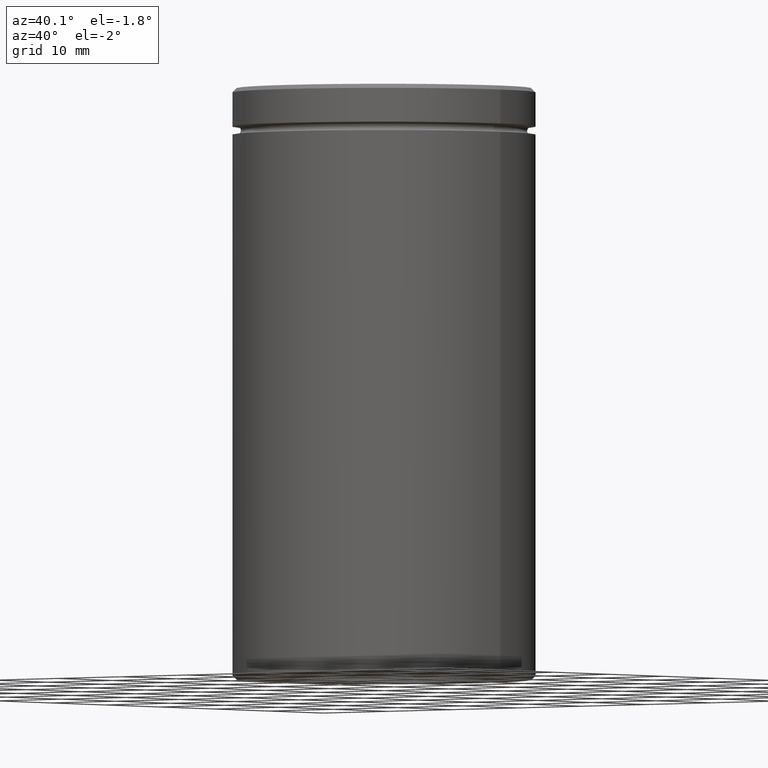
[diagram: clean part render]
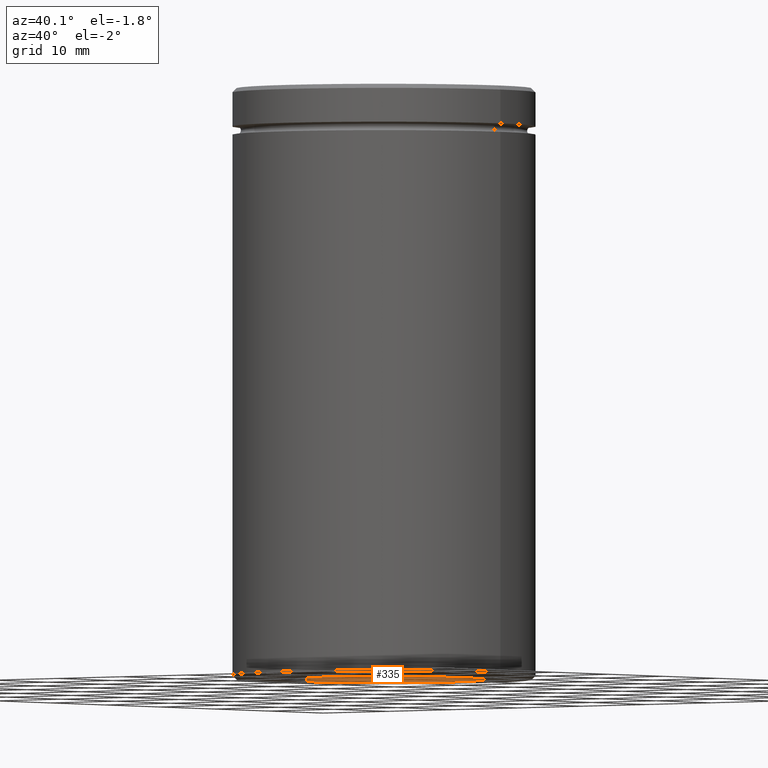
[diagram: same view with one face highlighted and labeled with its STEP entity id]
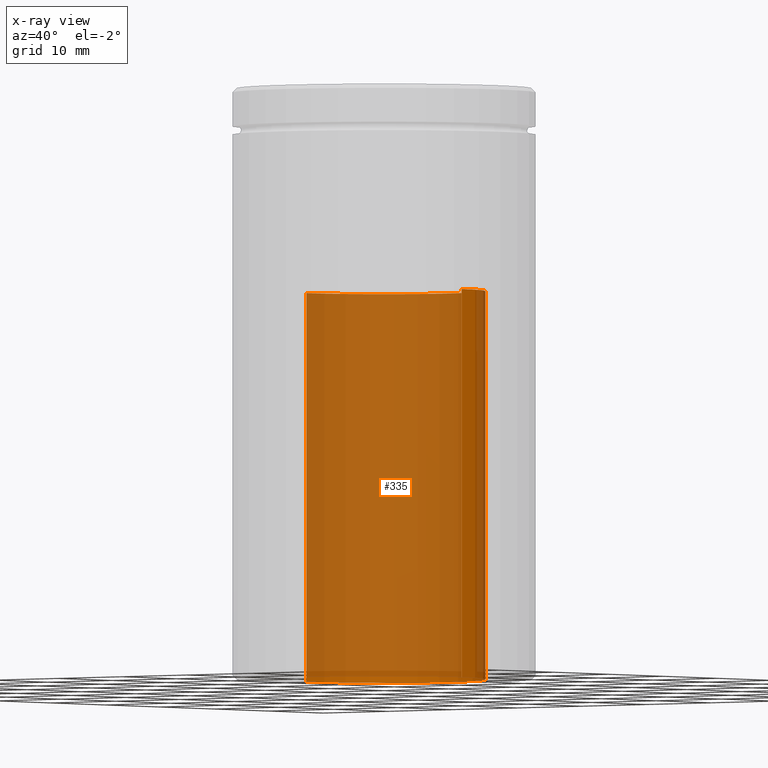
[diagram: x-ray of the same camera — body ghosted, the highlighted face saturated]
A machine part, auxiliary view. The second image highlights one B-rep face of the part: STEP entity #335.
The next image is the same camera in x-ray: the body ghosted, the highlighted face saturated — about 90% of this face is hidden behind the body in this view.
In plain terms, the highlighted cylindrical surface (partial cylindrical patch) has radius 12 mm, axis along (-0, -0, -1).
Its self-contained STEP definition (entity closure, byte-faithful):
#34 = EDGE_CURVE ( 'NONE', #267, #459, #45, .T. ) ;
#42 = CARTESIAN_POINT ( 'NONE',  ( 0.000000000000000000, 0.000000000000000000, -24.00000000000000711 ) ) ;
#45 = CIRCLE ( 'NONE', #369, 12.00000000000000178 ) ;
#49 = EDGE_CURVE ( 'NONE', #405, #267, #530, .T. ) ;
#58 = DIRECTION ( 'NONE',  ( -1.000000000000000000, 0.000000000000000000, 0.000000000000000000 ) ) ;
#85 = CYLINDRICAL_SURFACE ( 'NONE', #214, 12.00000000000000178 ) ;
#117 = VECTOR ( 'NONE', #295, 1000.000000000000000 ) ;
#126 = CARTESIAN_POINT ( 'NONE',  ( 12.00000000000000178, 1.469576158976824144E-15, -24.00000000000000711 ) ) ;
#138 = CARTESIAN_POINT ( 'NONE',  ( 0.000000000000000000, 0.000000000000000000, -24.00000000000000711 ) ) ;
#140 = DIRECTION ( 'NONE',  ( -0.000000000000000000, -0.000000000000000000, -1.000000000000000000 ) ) ;
#151 = DIRECTION ( 'NONE',  ( 0.000000000000000000, 0.000000000000000000, -1.000000000000000000 ) ) ;
#154 = DIRECTION ( 'NONE',  ( 0.000000000000000000, 0.000000000000000000, -1.000000000000000000 ) ) ;
#162 = EDGE_CURVE ( 'NONE', #405, #262, #484, .T. ) ;
#193 = VECTOR ( 'NONE', #140, 1000.000000000000000 ) ;
#200 = CARTESIAN_POINT ( 'NONE',  ( -12.00000000000000178, 0.000000000000000000, -24.00000000000000711 ) ) ;
#210 = ORIENTED_EDGE ( 'NONE', *, *, #162, .F. ) ;
#214 = AXIS2_PLACEMENT_3D ( 'NONE', #42, #217, #285 ) ;
#217 = DIRECTION ( 'NONE',  ( -0.000000000000000000, -0.000000000000000000, -1.000000000000000000 ) ) ;
#232 = CARTESIAN_POINT ( 'NONE',  ( -12.00000000000000178, 0.000000000000000000, -24.00000000000000711 ) ) ;
#233 = ORIENTED_EDGE ( 'NONE', *, *, #299, .F. ) ;
#234 = CARTESIAN_POINT ( 'NONE',  ( 12.00000000000000178, 1.469576158976824144E-15, -24.00000000000000711 ) ) ;
#262 = VERTEX_POINT ( 'NONE', #234 ) ;
#267 = VERTEX_POINT ( 'NONE', #401 ) ;
#283 = CARTESIAN_POINT ( 'NONE',  ( 0.000000000000000000, 0.000000000000000000, -70.00000000000000000 ) ) ;
#285 = DIRECTION ( 'NONE',  ( -1.000000000000000000, 0.000000000000000000, 0.000000000000000000 ) ) ;
#295 = DIRECTION ( 'NONE',  ( -0.000000000000000000, -0.000000000000000000, -1.000000000000000000 ) ) ;
#298 = CARTESIAN_POINT ( 'NONE',  ( 12.00000000000000178, 1.469576158976824144E-15, -70.00000000000000000 ) ) ;
#299 = EDGE_CURVE ( 'NONE', #262, #459, #504, .T. ) ;
#303 = EDGE_LOOP ( 'NONE', ( #233, #210, #507, #517 ) ) ;
#328 = DIRECTION ( 'NONE',  ( -1.000000000000000000, 0.000000000000000000, 0.000000000000000000 ) ) ;
#335 = ADVANCED_FACE ( 'NONE', ( #477 ), #85, .F. ) ;
#369 = AXIS2_PLACEMENT_3D ( 'NONE', #283, #154, #58 ) ;
#401 = CARTESIAN_POINT ( 'NONE',  ( -12.00000000000000178, 0.000000000000000000, -70.00000000000000000 ) ) ;
#403 = AXIS2_PLACEMENT_3D ( 'NONE', #138, #151, #328 ) ;
#405 = VERTEX_POINT ( 'NONE', #200 ) ;
#459 = VERTEX_POINT ( 'NONE', #298 ) ;
#477 = FACE_OUTER_BOUND ( 'NONE', #303, .T. ) ;
#484 = CIRCLE ( 'NONE', #403, 12.00000000000000178 ) ;
#504 = LINE ( 'NONE', #126, #117 ) ;
#507 = ORIENTED_EDGE ( 'NONE', *, *, #49, .T. ) ;
#517 = ORIENTED_EDGE ( 'NONE', *, *, #34, .T. ) ;
#530 = LINE ( 'NONE', #232, #193 ) ;